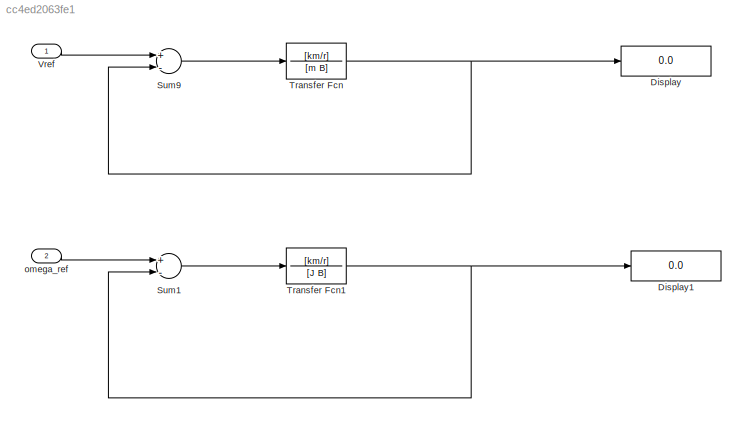
MODEL slx_cc4ed2063fe1
KIND model
CONFIG AbsTol = auto
CONFIG FixedStep = auto
CONFIG MaxStep = auto
CONFIG MinStep = auto
CONFIG RelTol = 1e-3
CONFIG SampleTimeConstraint = Unconstrained
CONFIG Solver = VariableStepAuto
CONFIG SolverMode = Auto
CONFIG SolverName = VariableStepAuto
CONFIG StartTime = 0.0
CONFIG StopTime = 10.0
BLOCK [Display] Display
  Decimation = 1
  Ports = [1]
BLOCK [Display] Display1
  Decimation = 1
  Ports = [1]
BLOCK [Sum] Sum1
  InputSameDT = off
  Inputs = +-
  OutDataTypeStr = Inherit: Inherit via internal rule
  Ports = [2, 1]
  SaturateOnIntegerOverflow = off
BLOCK [Sum] Sum9
  InputSameDT = off
  Inputs = +-
  OutDataTypeStr = Inherit: Inherit via internal rule
  Ports = [2, 1]
  SaturateOnIntegerOverflow = off
BLOCK [TransferFcn] Transfer Fcn
  Denominator = [m B]
  Numerator = [km/r]
BLOCK [TransferFcn] Transfer Fcn1
  Denominator = [J B]
  Numerator = [km/r]
BLOCK [Inport] Vref
  IconDisplay = Port number
BLOCK [Inport] omega_ref
  IconDisplay = Port number
  Port = 2
LINE Sum1:1 -> Transfer Fcn1:1
LINE Sum9:1 -> Transfer Fcn:1
NET Transfer Fcn1:1 -> Display1:1, Sum1:2
NET Transfer Fcn:1 -> Display:1, Sum9:2
LINE Vref:1 -> Sum9:1
LINE omega_ref:1 -> Sum1:1
note: NET lines group one-source signal fan-out (src -> all destinations, sorted); 1:1 wires keep LINE
